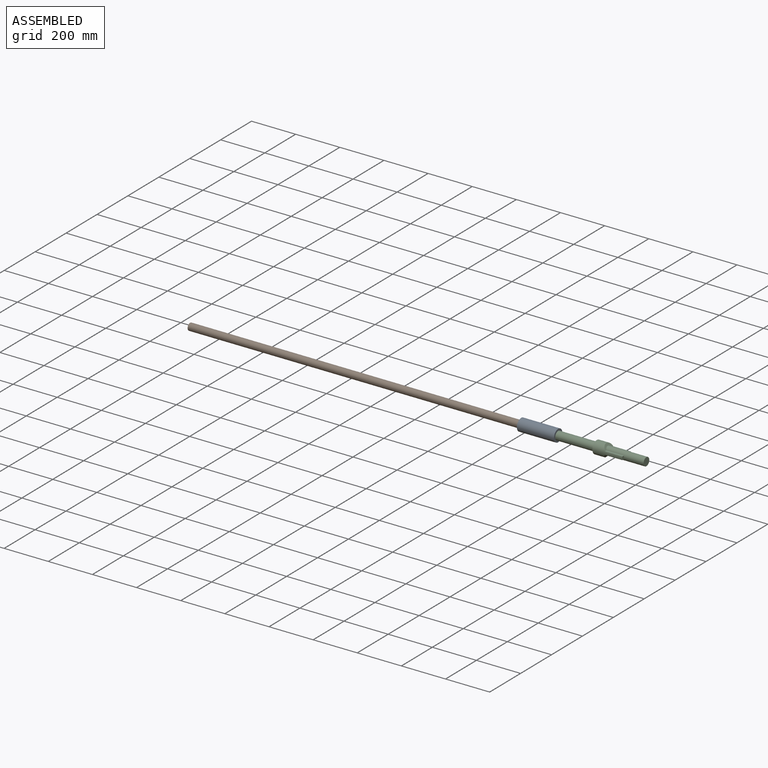
[diagram: assembled view]
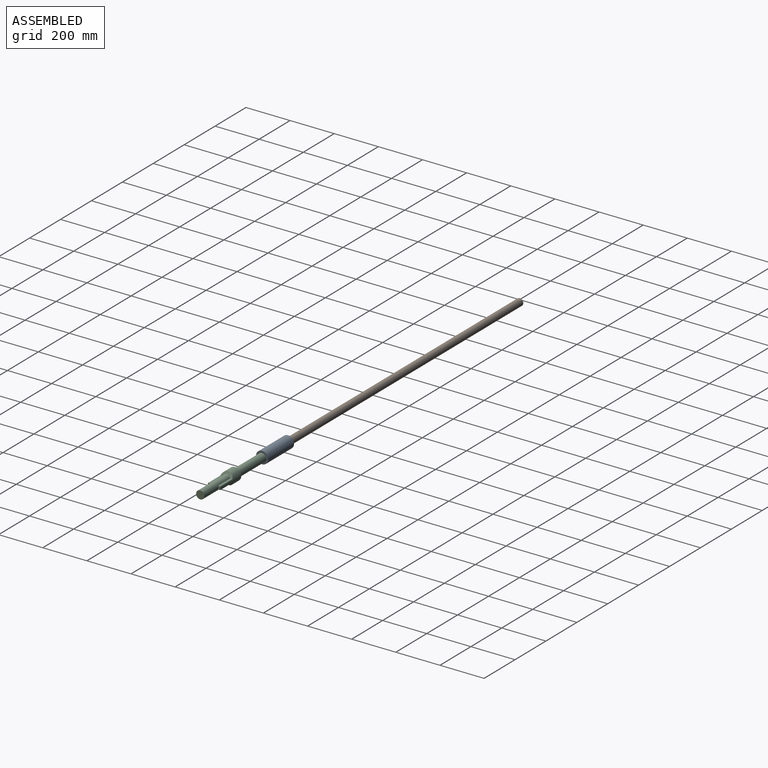
[diagram: assembled view, second angle]
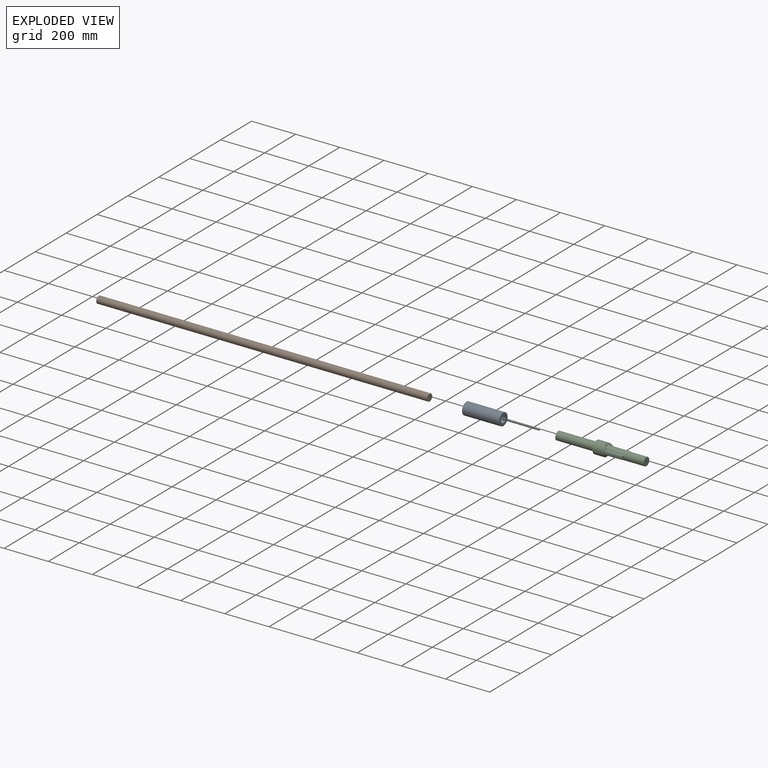
[diagram: exploded view]
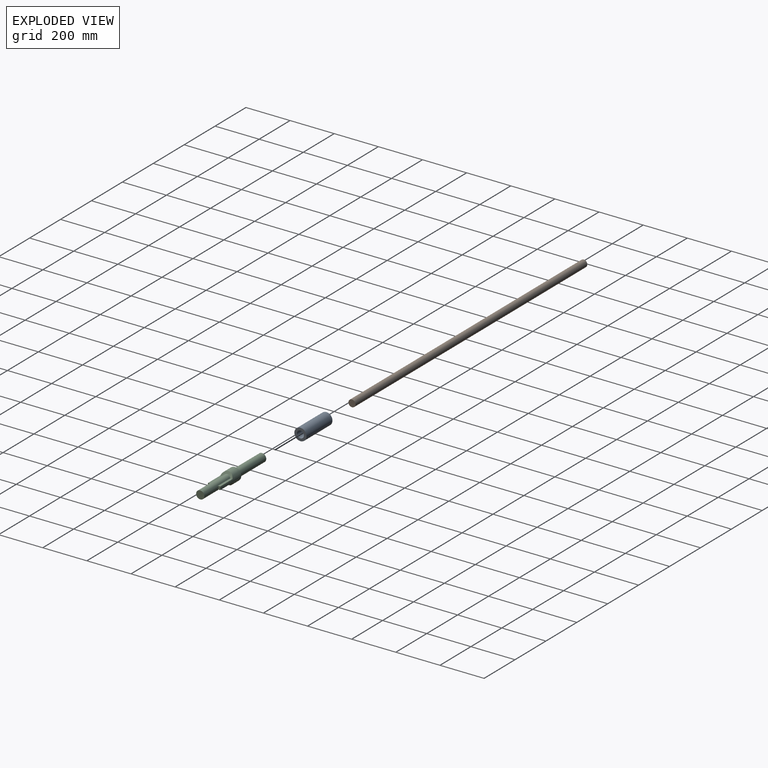
[diagram: exploded view, second angle]
ASSEMBLY  parts=3 mates=2
PART A: 4 faces, bbox 168x55x55 mm
  f0: cylinder r=27.5mm len=168mm, axis (-1,0,0), area 29028.3mm2, adj f1,f3
  f1: plane 55x55mm, normal (-1,0,0), area 1571.6mm2, adj f0,f2
  f2: cylinder r=16mm len=168mm, axis (1,0,0), area 16889.2mm2, adj f1,f3
  f3: plane 55x55mm, normal (1,0,0), area 1571.6mm2, adj f0,f2
PART B: 3 faces, bbox 1500x32x32 mm
  f0: cylinder r=16mm len=1500mm, axis (-1,0,0), area 150796.4mm2, adj f1,f2
  f1: plane 32x32mm, normal (1,0,0), area 804.2mm2, adj f0
  f2: plane 32x32mm, normal (-1,0,0), area 804.2mm2, adj f0
PART C: 14 faces, bbox 400x57x57 mm
  f0: plane 37x37mm, normal (1,0,0), area 1075.2mm2, adj f8
  f1: cylinder r=28.5mm len=135mm, axis (-1,0,0), area 11161.8mm2, adj f3,f5,f6,f7,f9,f10,f11,f12
  f2: cylinder r=19mm len=175mm, axis (-1,0,0), area 20891.6mm2, adj f3,f4
  f3: plane 57x57mm, normal (-1,0,0), area 1417.6mm2, adj f1,f2
  f4: plane 38x38mm, normal (-1,0,0), area 1134.1mm2, adj f2
  f5: plane 79.24x10.56mm, normal (0,0,-1), area 836.7mm2, adj f1,f7,f8,f12
  f6: plane 79.24x10.56mm, normal (0,0,-1), area 836.7mm2, adj f1,f7,f8,f13
  f7: plane 55.07x21.15mm, normal (0.87,0,-0.5), area 679.7mm2, adj f1,f5,f6,f8
  f8: cylinder r=18.5mm len=175.7mm, axis (1,0,0), area 17637.5mm2, adj f0,f5,f6,f7,f9,f10,f11,f12
  f9: plane 79.24x10.56mm, normal (0,0,1), area 836.7mm2, adj f1,f8,f11,f13
  f10: plane 79.24x10.56mm, normal (0,0,1), area 836.7mm2, adj f1,f8,f11,f12
  f11: plane 55.07x21.15mm, normal (0.87,0,0.5), area 679.7mm2, adj f1,f8,f9,f10
  f12: plane 14.7x11.52mm, normal (1,0,0), area 149.6mm2, adj f1,f5,f8,f10
  f13: plane 14.7x11.52mm, normal (1,0,0), area 149.6mm2, adj f1,f6,f8,f9
PLACE A t=(-178.47,86.41,35.56)mm
PLACE B t=(-1678.47,86.41,35.56)mm
PLACE C t=(-10.47,86.41,35.56)mm
MATE fastened C.f2 <-> A.f0  axis (-1,0,0) through (-10.47,86.41,35.56)mm
MATE revolute B.f0 <-> A.f2  axis (1,0,0) through (-178.47,86.41,35.56)mm
